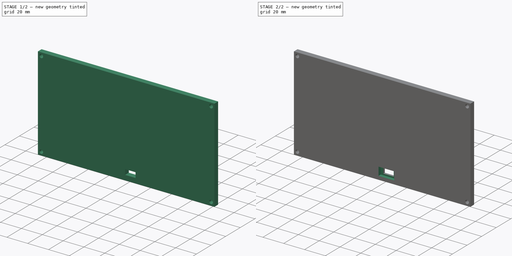
[diagram: build sequence overview — one tinted view per stage of 2, left to right]
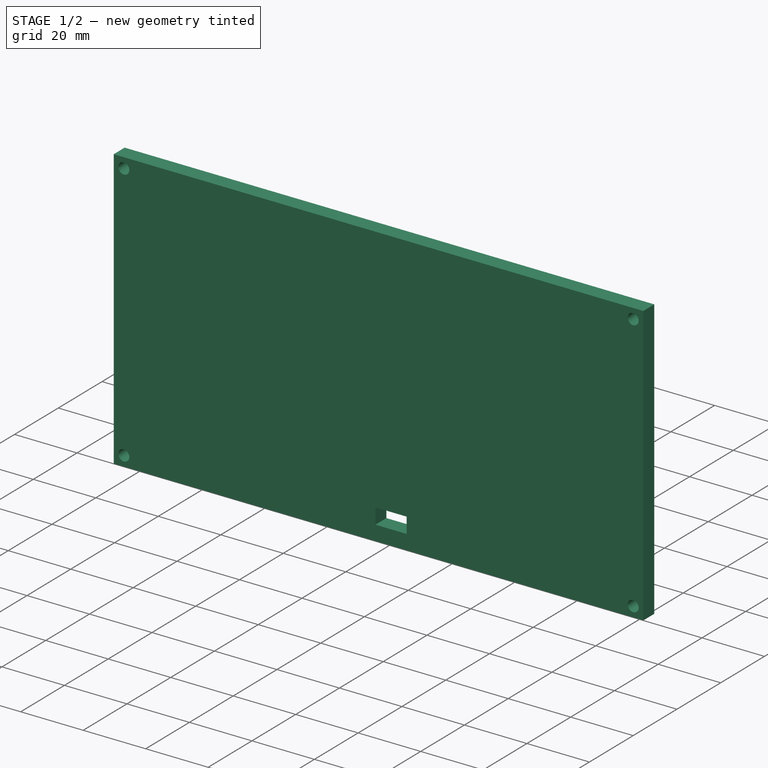
[diagram: stage 1 of 2 — iso view after this stage's code; geometry added in this stage tinted green]
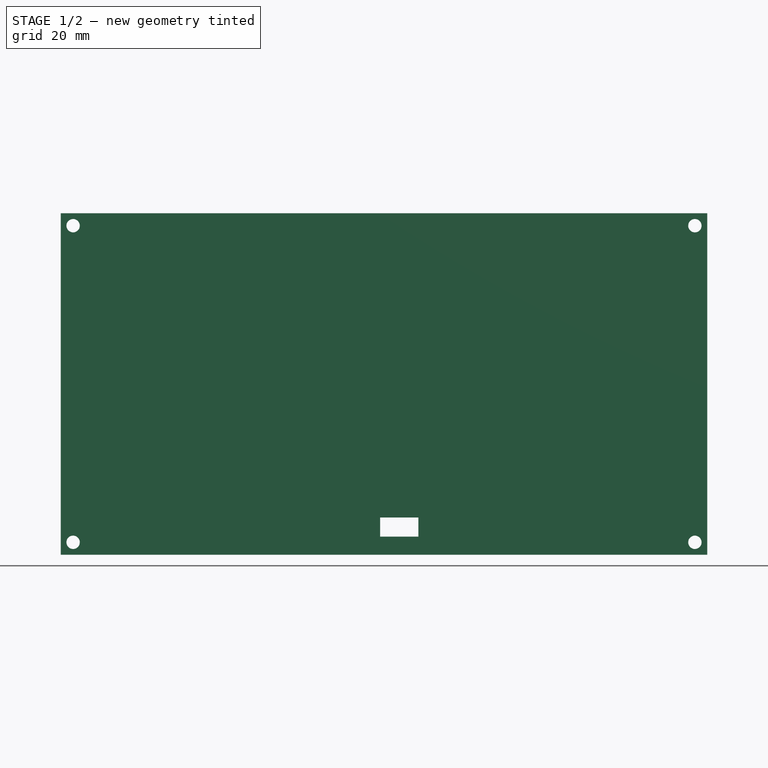
[diagram: stage 1 of 2 — front view after this stage's code; geometry added in this stage tinted green]
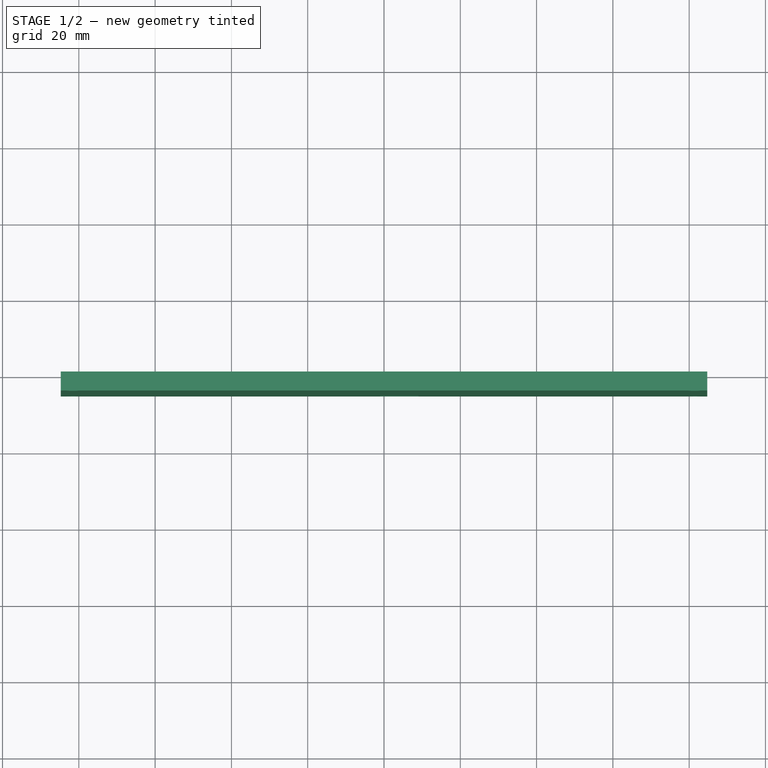
[diagram: stage 1 of 2 — top view after this stage's code; geometry added in this stage tinted green]
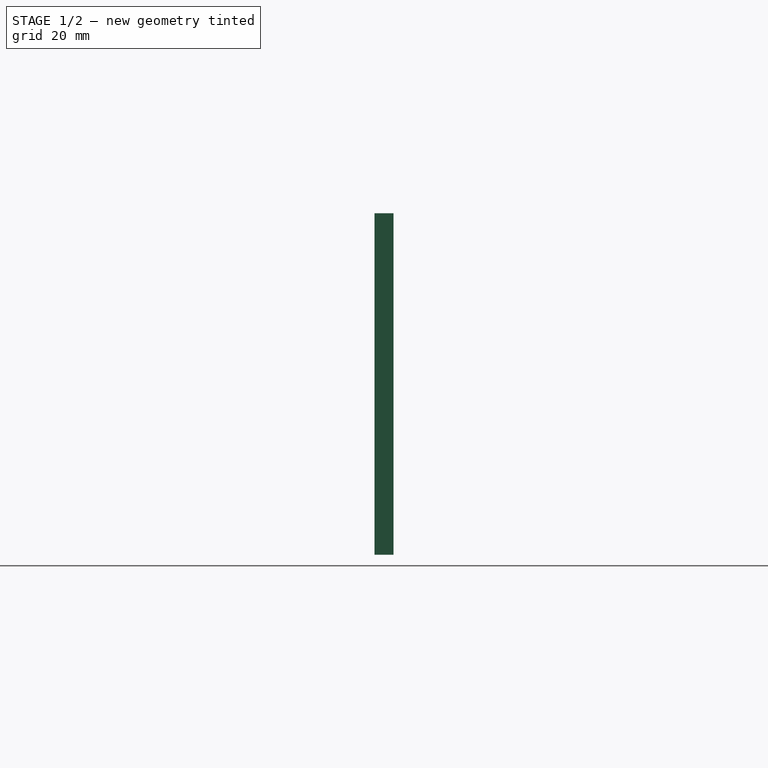
[diagram: stage 1 of 2 — right view after this stage's code; geometry added in this stage tinted green]
FCSTD DOCUMENT  (FreeCAD 1.0R39109 (Git))
Label: aiyima_new_backcover
License: All rights reserved
LicenseURL: https://en.wikipedia.org/wiki/All_rights_reserved
objects: Sketcher::SketchObject×3, PartDesign::Pocket×2, PartDesign::Pad×1, PartDesign::Body×1
note: 16 computed .brp shape members not serialized (recipe doc carries the construction recipe); baked Part::Feature solids carry a one-line shape summary decoded from their .brp

FEATURE [Sketcher::SketchObject] Sketch  label="Sketch_body_cover"
  ArcFitTolerance = 1e-06
  AttachmentSupport = -> [XZ_Plane]
  FullyConstrained = true
  MakeInternals = false
  MapMode = 5
  Placement = pos=(0,0,0) rot=(1,0,0;1.5708rad)
  sketch-geometry (5):
    g0: LineSegment StartX=-84.75 StartY=-44.75 StartZ=0 EndX=84.75 EndY=-44.75 EndZ=0
    g1: LineSegment StartX=84.75 StartY=-44.75 StartZ=0 EndX=84.75 EndY=44.75 EndZ=0
    g2: LineSegment StartX=84.75 StartY=44.75 StartZ=0 EndX=-84.75 EndY=44.75 EndZ=0
    g3: LineSegment StartX=-84.75 StartY=44.75 StartZ=0 EndX=-84.75 EndY=-44.75 EndZ=0
    g4: GeomPoint [constr] X=0 Y=0 Z=0
  constraints (12):
    c: Coincident(g0,g1)
    c: Coincident(g1,g2)
    c: Coincident(g2,g3)
    c: Coincident(g3,g0)
    c: Horizontal(g0)
    c: Horizontal(g2)
    c: Vertical(g1)
    c: Vertical(g3)
    c: Symmetric(g2,g0,g4)
    c: Distance(g1,g3) = 169.5
    c: Distance(g0,g2) = 89.5
    c: Coincident(g4,g-1)
FEATURE [PartDesign::Pad] Pad  label="body_cover"
  Direction = (0,-1,2e-16)
  Length = 5
  Length2 = 10
  Placement = pos=(0,0,0) rot=(1,0,0;1.5708rad)
  Profile = -> Sketch
  ReferenceAxis = -> Sketch [N_Axis]
  Refine = true
  Suppressed = false
  Type = 0
FEATURE [Sketcher::SketchObject] Sketch001  label="Sketch_hole_screw_port"
  ArcFitTolerance = 1e-06
  AttachmentSupport = -> [Pad]
  FullyConstrained = true
  MakeInternals = false
  MapMode = 5
  Placement = pos=(0,-5,0) rot=(1,0,0;1.5708rad)
  sketch-geometry (17):
    g0: LineSegment [constr] StartX=-85 StartY=-45 StartZ=0 EndX=85 EndY=-45 EndZ=0
    g1: LineSegment [constr] StartX=85 StartY=-45 StartZ=0 EndX=85 EndY=45 EndZ=0
    g2: LineSegment [constr] StartX=85 StartY=45 StartZ=0 EndX=-85 EndY=45 EndZ=0
    g3: LineSegment [constr] StartX=-85 StartY=45 StartZ=0 EndX=-85 EndY=-45 EndZ=0
    g4: GeomPoint [constr] X=0 Y=0 Z=0
    g5: Circle CenterX=-81.5 CenterY=41.5 CenterZ=0 NormalX=0 NormalY=0 NormalZ=1 AngleXU=0 Radius=1.75
    g6: Circle CenterX=81.5 CenterY=41.5 CenterZ=0 NormalX=0 NormalY=0 NormalZ=1 AngleXU=0 Radius=1.75
    g7: Circle CenterX=-81.5 CenterY=-41.5 CenterZ=0 NormalX=0 NormalY=0 NormalZ=1 AngleXU=0 Radius=1.75
    g8: Circle CenterX=81.5 CenterY=-41.5 CenterZ=0 NormalX=0 NormalY=0 NormalZ=1 AngleXU=0 Radius=1.75
    g9: GeomPoint [constr] X=0 Y=-40 Z=0
    g10: LineSegment [constr] StartX=-10 StartY=-40 StartZ=0 EndX=10 EndY=-40 EndZ=0
    g11: GeomPoint [constr] X=0 Y=-40 Z=0
    g12: LineSegment StartX=-1 StartY=-40 StartZ=0 EndX=9 EndY=-40 EndZ=0
    g13: LineSegment StartX=9 StartY=-40 StartZ=0 EndX=9 EndY=-35 EndZ=0
    g14: LineSegment StartX=9 StartY=-35 StartZ=0 EndX=-1 EndY=-35 EndZ=0
    g15: LineSegment StartX=-1 StartY=-35 StartZ=0 EndX=-1 EndY=-40 EndZ=0
    g16: GeomPoint [constr] X=4 Y=-37.5 Z=0
  constraints (42):
    c: Coincident(g0,g1)
    c: Coincident(g1,g2)
    c: Coincident(g2,g3)
    c: Coincident(g3,g0)
    c: Horizontal(g0)
    c: Horizontal(g2)
    c: Vertical(g1)
    c: Vertical(g3)
    c: Symmetric(g2,g0,g4)
    c: Distance(g1,g3) = 170
    c: Distance(g0,g2) = 90
    c: Coincident(g4,g-1)
    c: Diameter(g5) = 3.5
    c: DistanceX(g2,g5) = 3.5
    c: Distance(g5,g2) = 3.5
    c: Equal(g5,g6)
    c: Symmetric(g5,g6,g-2)
    c: Equal(g5,g7)
    c: Symmetric(g5,g7,g-1)
    c: Equal(g6,g8)
    c: Symmetric(g6,g8,g-1)
    c: PointOnObject(g9,g-2)
    c: Distance(g9,g0) = 5
    c: Distance(g10) = 20
    c: Horizontal(g10)
    c: Symmetric(g10,g10,g11)
    c: Coincident(g9,g11)
    c: DistanceY(g9,g4) = 40
    c: Coincident(g12,g13)
    c: Coincident(g13,g14)
    c: Coincident(g14,g15)
    c: Coincident(g15,g12)
    c: Horizontal(g14)
    c: Vertical(g13)
    c: Vertical(g15)
    c: Symmetric(g14,g12,g16)
    c: Distance(g13,g15) = 10
    c: Distance(g12,g14) = 5
    c: Tangent(g12,g10)
    c: Distance(g10,g13) = 1
    c: DistanceY(g16,g4) = 37.5
    c: DistanceX(g4,g16) = 4
FEATURE [PartDesign::Pocket] Pocket  label="hole_screw_port"
  BaseFeature = -> Pad
  Direction = (0,1,-2e-16)
  Length = 5
  Length2 = 5
  Placement = pos=(0,0,0) rot=(1,0,0;1.5708rad)
  Profile = -> Sketch001
  ReferenceAxis = -> Sketch001 [N_Axis]
  Refine = true
  Suppressed = false
  Type = 0
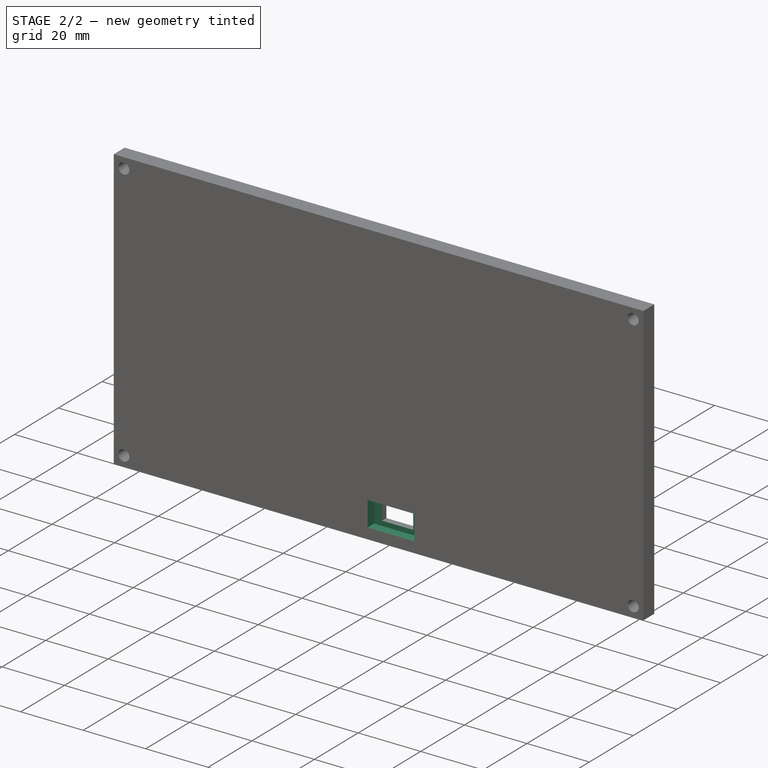
[diagram: stage 2 of 2 — iso view after this stage's code; geometry added in this stage tinted green]
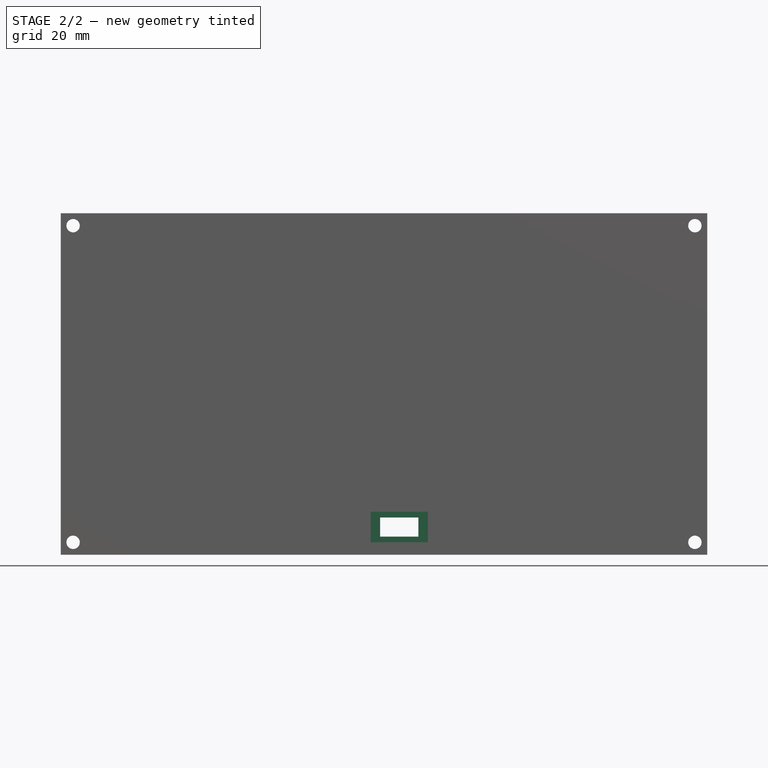
[diagram: stage 2 of 2 — front view after this stage's code; geometry added in this stage tinted green]
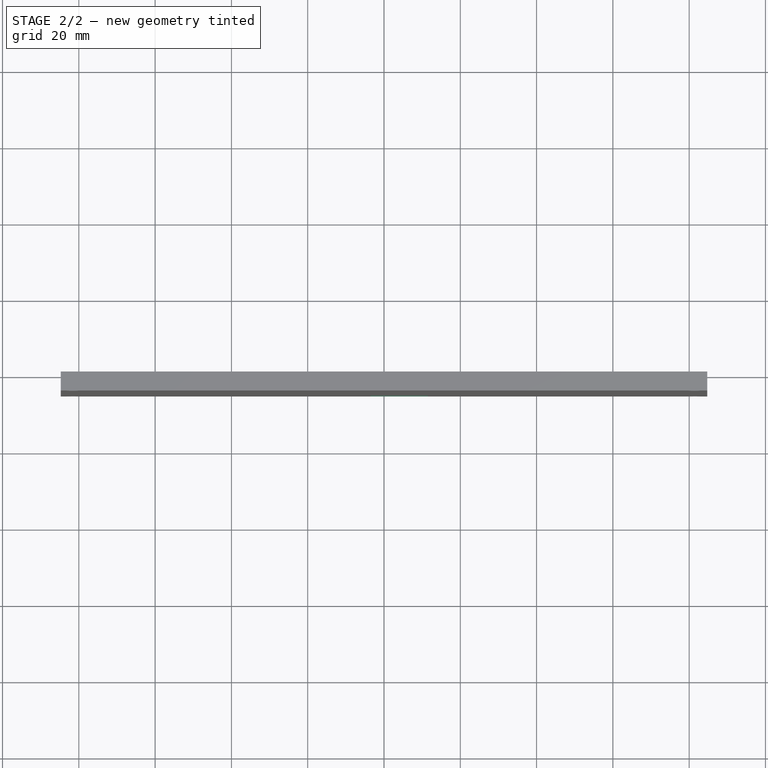
[diagram: stage 2 of 2 — top view after this stage's code; geometry added in this stage tinted green]
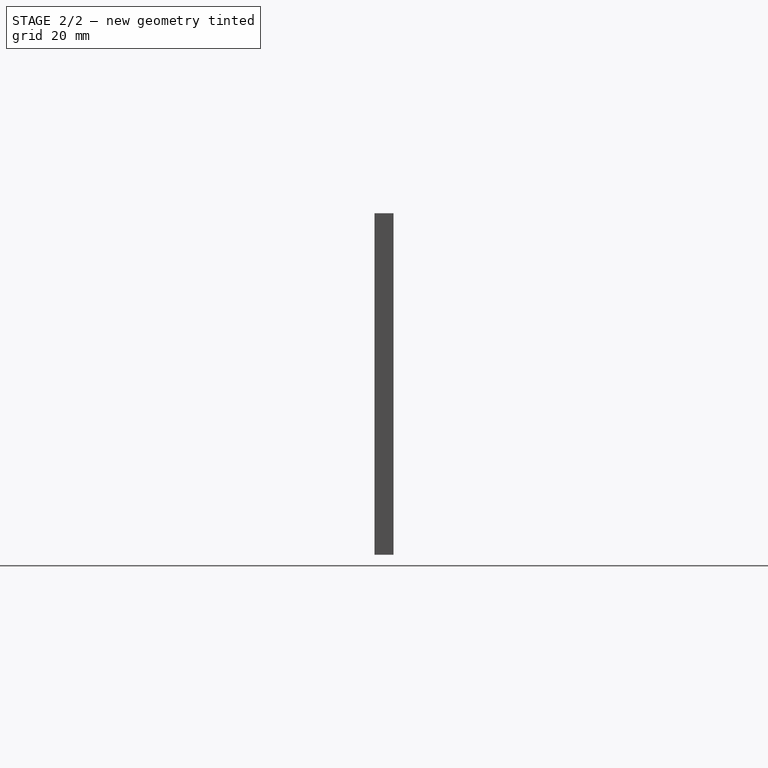
[diagram: stage 2 of 2 — right view after this stage's code; geometry added in this stage tinted green]
FEATURE [Sketcher::SketchObject] Sketch002  label="Sketch_counterbore_port"
  ArcFitTolerance = 1e-06
  AttachmentSupport = -> [Pocket]
  FullyConstrained = true
  MakeInternals = false
  MapMode = 5
  Placement = pos=(0,-5,0) rot=(1,0,0;1.5708rad)
  sketch-geometry (5):
    g0: LineSegment StartX=-3.5 StartY=-41.5 StartZ=0 EndX=11.5 EndY=-41.5 EndZ=0
    g1: LineSegment StartX=11.5 StartY=-41.5 StartZ=0 EndX=11.5 EndY=-33.5 EndZ=0
    g2: LineSegment StartX=11.5 StartY=-33.5 StartZ=0 EndX=-3.5 EndY=-33.5 EndZ=0
    g3: LineSegment StartX=-3.5 StartY=-33.5 StartZ=0 EndX=-3.5 EndY=-41.5 EndZ=0
    g4: GeomPoint [constr] X=4 Y=-37.5 Z=0
  constraints (13):
    c: Coincident(g0,g1)
    c: Coincident(g1,g2)
    c: Coincident(g2,g3)
    c: Coincident(g3,g0)
    c: Horizontal(g0)
    c: Horizontal(g2)
    c: Vertical(g1)
    c: Vertical(g3)
    c: Symmetric(g2,g0,g4)
    c: Distance(g1,g3) = 15
    c: Distance(g0,g2) = 8
    c: DistanceY(g4,g-1) = 37.5
    c: DistanceX(g-1,g4) = 4
FEATURE [PartDesign::Pocket] Pocket001  label="counterbore_port"
  BaseFeature = -> Pocket
  Direction = (0,1,-2e-16)
  Length = 3
  Length2 = 5
  Placement = pos=(0,0,0) rot=(1,0,0;1.5708rad)
  Profile = -> Sketch002
  ReferenceAxis = -> Sketch002 [N_Axis]
  Refine = true
  Suppressed = false
  Type = 0
FEATURE [PartDesign::Body] Body  label="몸통"
  AllowCompound = false
  Group = -> [Sketch,Pad,Sketch001,Pocket,Sketch002,Pocket001]
  Origin = -> Origin
  Tip = -> Pocket001
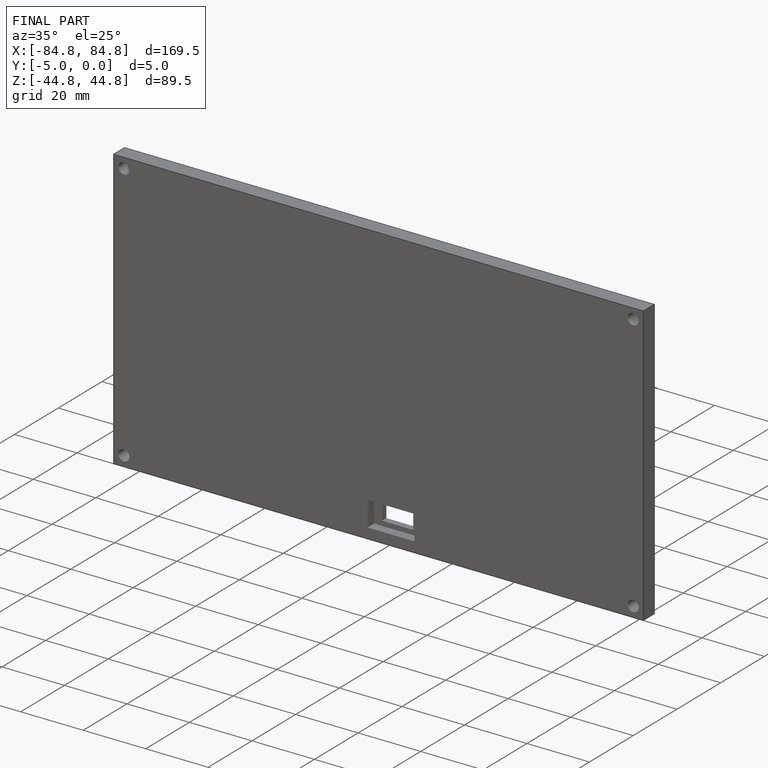
[diagram: finished part — iso view with bounding-box wireframe]
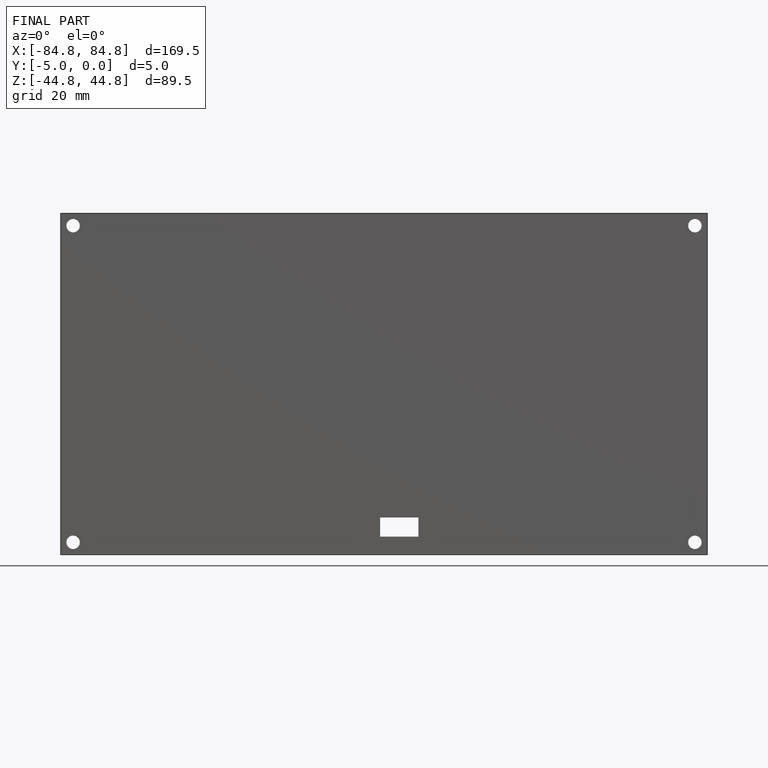
[diagram: finished part — front view with bounding-box wireframe]
